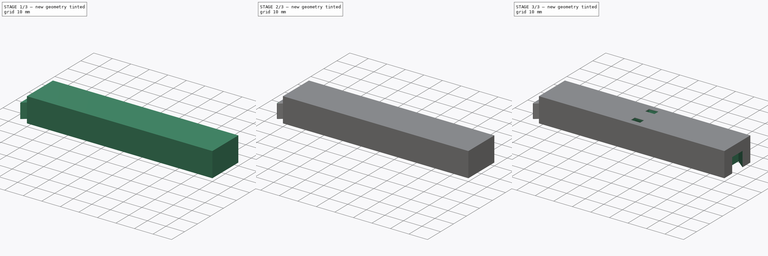
[diagram: build sequence overview — one tinted view per stage of 3, left to right]
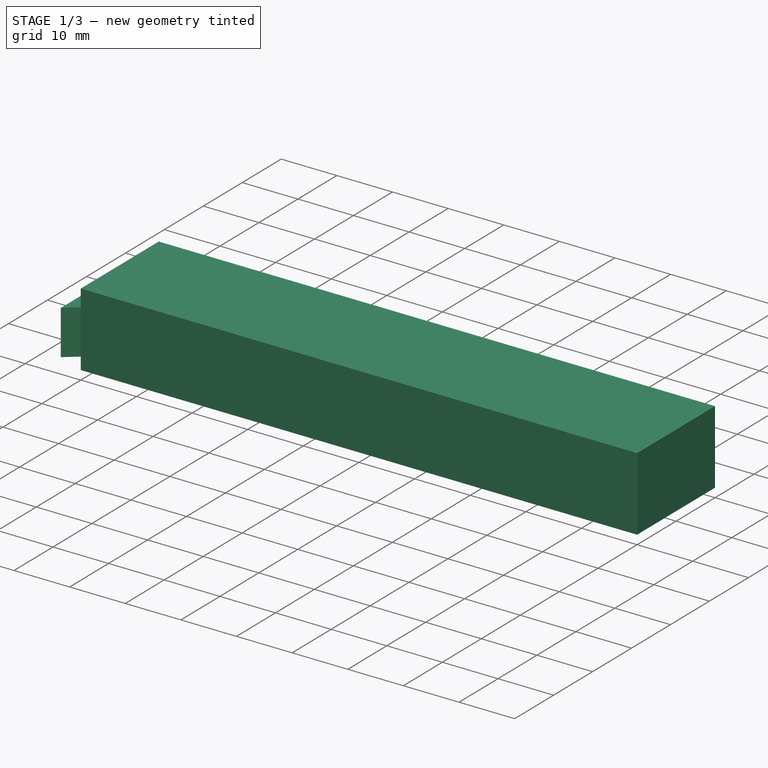
[diagram: stage 1 of 3 — iso view after this stage's code; geometry added in this stage tinted green]
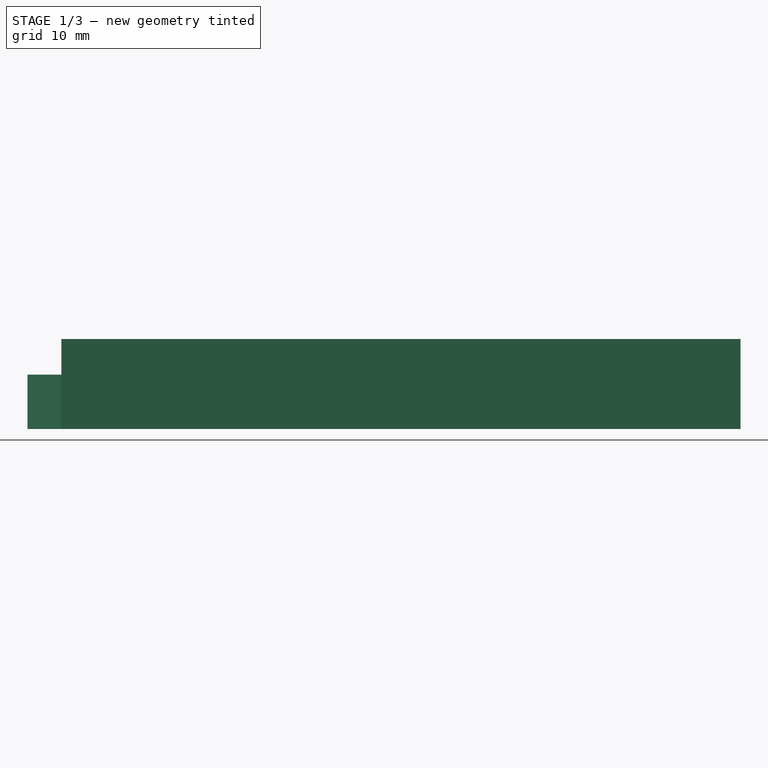
[diagram: stage 1 of 3 — front view after this stage's code; geometry added in this stage tinted green]
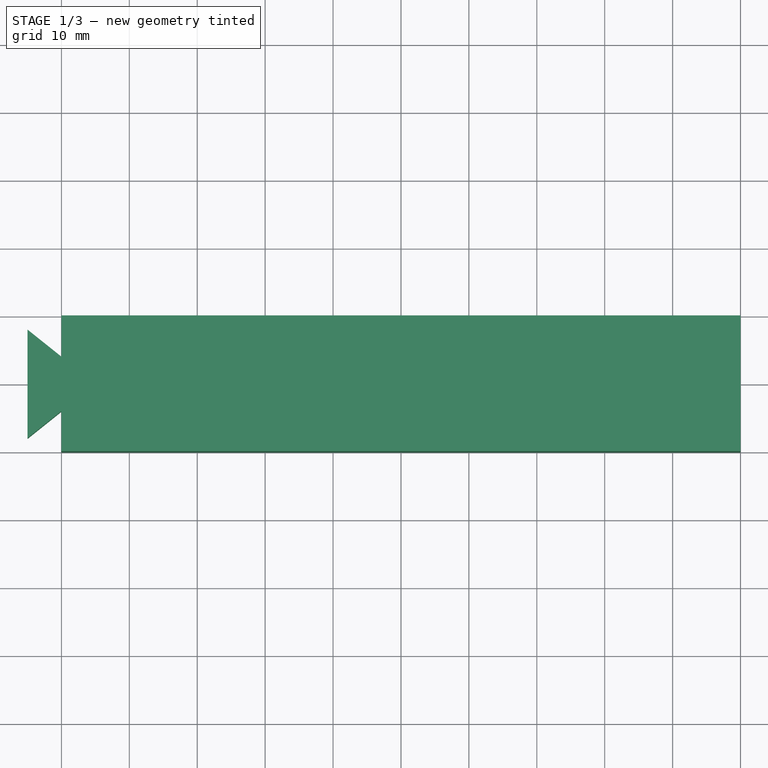
[diagram: stage 1 of 3 — top view after this stage's code; geometry added in this stage tinted green]
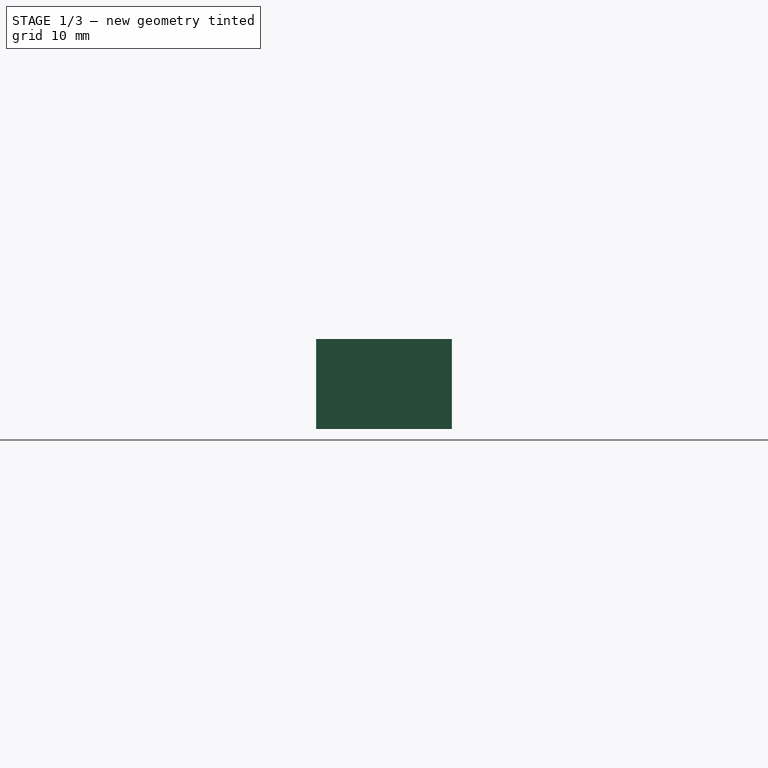
[diagram: stage 1 of 3 — right view after this stage's code; geometry added in this stage tinted green]
FCSTD DOCUMENT  (FreeCAD 1.0R39109 (Git))
Label: Straght
License: All rights reserved
LicenseURL: https://en.wikipedia.org/wiki/All_rights_reserved
objects: Sketcher::SketchObject×4, PartDesign::Pad×2, PartDesign::Chamfer×1, PartDesign::Pocket×1, PartDesign::Groove×1, PartDesign::Body×1
note: 24 computed .brp shape members not serialized (recipe doc carries the construction recipe); baked Part::Feature solids carry a one-line shape summary decoded from their .brp

FEATURE [Sketcher::SketchObject] Sketch
  ArcFitTolerance = 1e-06
  AttachmentSupport = -> [XY_Plane]
  FullyConstrained = true
  MakeInternals = false
  MapMode = 5
  sketch-geometry (4):
    g0: LineSegment StartX=0 StartY=0 StartZ=0 EndX=0 EndY=-20 EndZ=0
    g1: LineSegment StartX=0 StartY=-20 StartZ=0 EndX=100 EndY=-20 EndZ=0
    g2: LineSegment StartX=100 StartY=-20 StartZ=0 EndX=100 EndY=0 EndZ=0
    g3: LineSegment StartX=100 StartY=0 StartZ=0 EndX=0 EndY=0 EndZ=0
  constraints (11):
    c: Coincident(g0,g1)
    c: Coincident(g1,g2)
    c: Coincident(g2,g3)
    c: Coincident(g3,g0)
    c: Vertical(g0)
    c: Vertical(g2)
    c: Horizontal(g1)
    c: Horizontal(g3)
    c: Distance(g0,g2) = 100  'Length'
    c: Distance(g1,g3) = 20
    c: Coincident(g0,g-1)
FEATURE [PartDesign::Pad] Pad
  Direction = (0,0,1)
  Length = 13.25
  Length2 = 10
  Profile = -> Sketch
  ReferenceAxis = -> Sketch [N_Axis]
  Refine = true
  Suppressed = false
  Type = 0
FEATURE [Sketcher::SketchObject] Sketch001
  ArcFitTolerance = 1e-06
  AttachmentSupport = -> [XY_Plane]
  FullyConstrained = true
  MakeInternals = false
  MapMode = 5
  sketch-geometry (5):
    g0: LineSegment StartX=0 StartY=-6 StartZ=0 EndX=-5 EndY=-2 EndZ=0
    g1: LineSegment StartX=-5 StartY=-2 StartZ=0 EndX=-5 EndY=-18 EndZ=0
    g2: LineSegment StartX=-5 StartY=-18 StartZ=0 EndX=0 EndY=-14 EndZ=0
    g3: LineSegment [constr] StartX=-5 StartY=-10 StartZ=0 EndX=0 EndY=-10 EndZ=0
    g4: LineSegment StartX=0 StartY=-6 StartZ=0 EndX=0 EndY=-14 EndZ=0
  constraints (14):
    c: PointOnObject(g0,g-2)
    c: Coincident(g1,g0)
    c: Vertical(g1)
    c: Coincident(g2,g1)
    c: PointOnObject(g2,g-2)
    c: Symmetric(g0,g2,g3)
    c: Symmetric(g0,g1,g3)
    c: Horizontal(g3)
    c: DistanceY(g1,g1) = 16
    c: Coincident(g4,g0)
    c: Coincident(g4,g2)
    c: DistanceY(g4,g4) = 8
    c: Distance(g1,g4) = 5
    c: Distance(g-1,g3) = 10
FEATURE [PartDesign::Pad] Pad001
  BaseFeature = -> Pad
  Direction = (0,0,1)
  Length = 8
  Length2 = 10
  Profile = -> Sketch001
  ReferenceAxis = -> Sketch001 [N_Axis]
  Refine = true
  Suppressed = false
  Type = 0
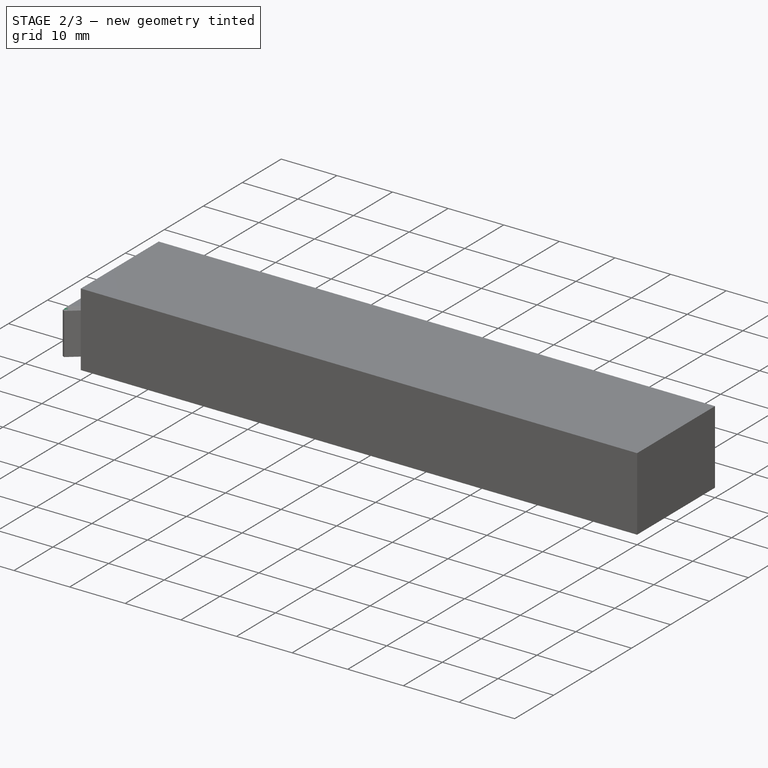
[diagram: stage 2 of 3 — iso view after this stage's code; geometry added in this stage tinted green]
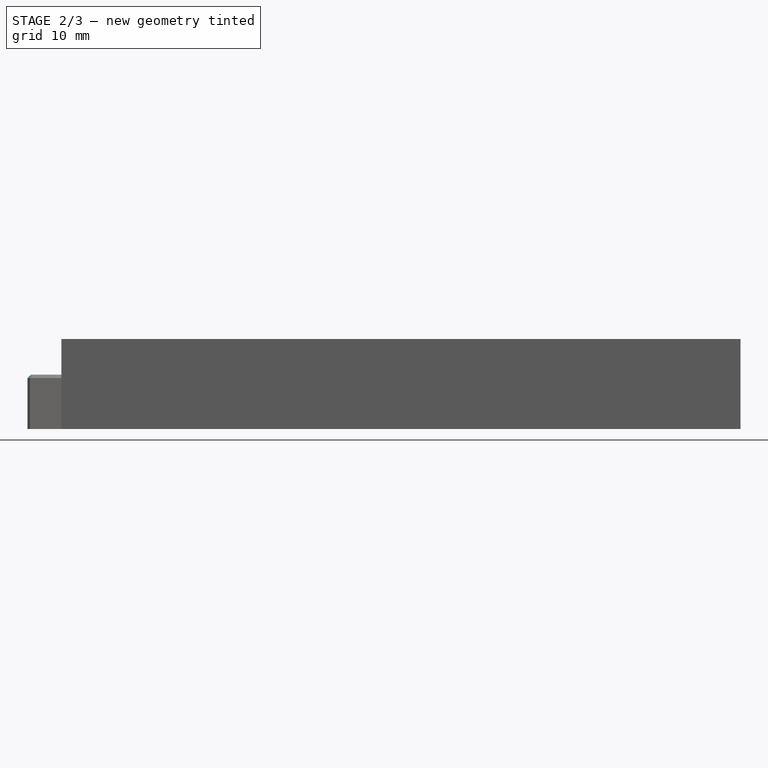
[diagram: stage 2 of 3 — front view after this stage's code; geometry added in this stage tinted green]
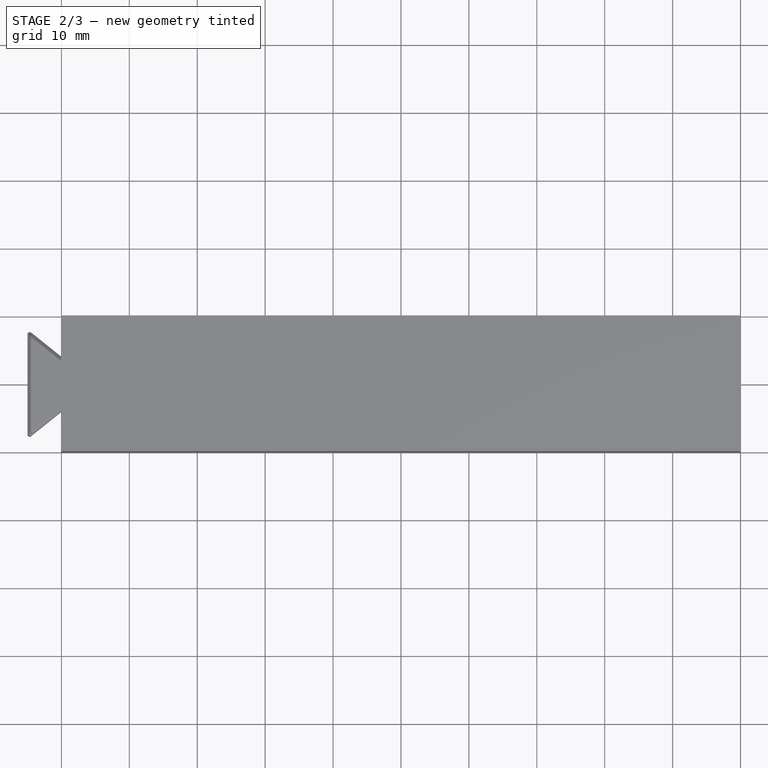
[diagram: stage 2 of 3 — top view after this stage's code; geometry added in this stage tinted green]
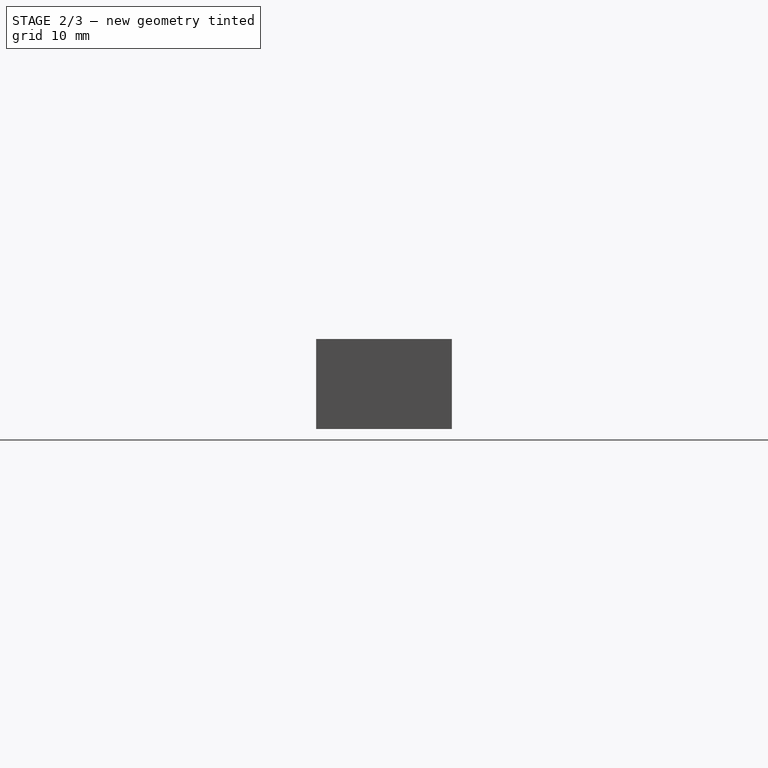
[diagram: stage 2 of 3 — right view after this stage's code; geometry added in this stage tinted green]
FEATURE [PartDesign::Chamfer] Chamfer
  Angle = 45
  Base = -> Pad001 [Edge12,Edge13,Edge11,Edge9,Edge14]
  BaseFeature = -> Pad001
  ChamferType = 0
  FlipDirection = false
  Refine = true
  Size = 0.5
  Size2 = 1
  SupportTransform = false
  Suppressed = false
  UseAllEdges = false
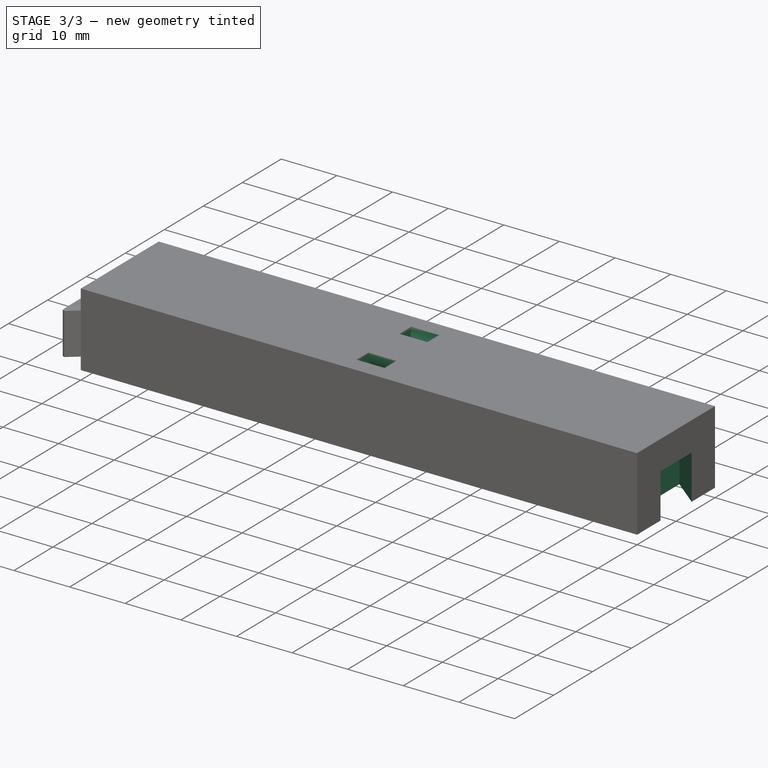
[diagram: stage 3 of 3 — iso view after this stage's code; geometry added in this stage tinted green]
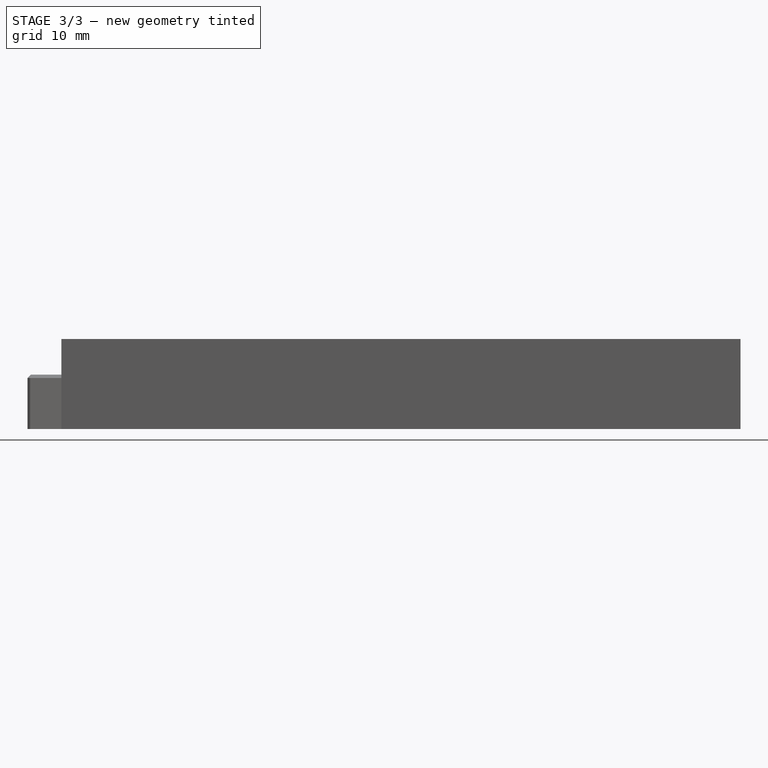
[diagram: stage 3 of 3 — front view after this stage's code; geometry added in this stage tinted green]
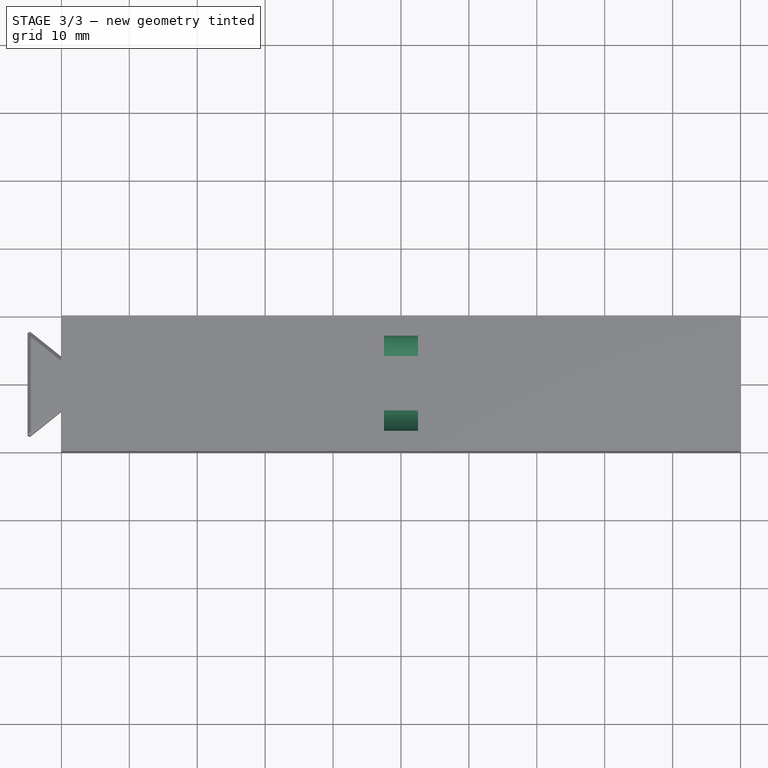
[diagram: stage 3 of 3 — top view after this stage's code; geometry added in this stage tinted green]
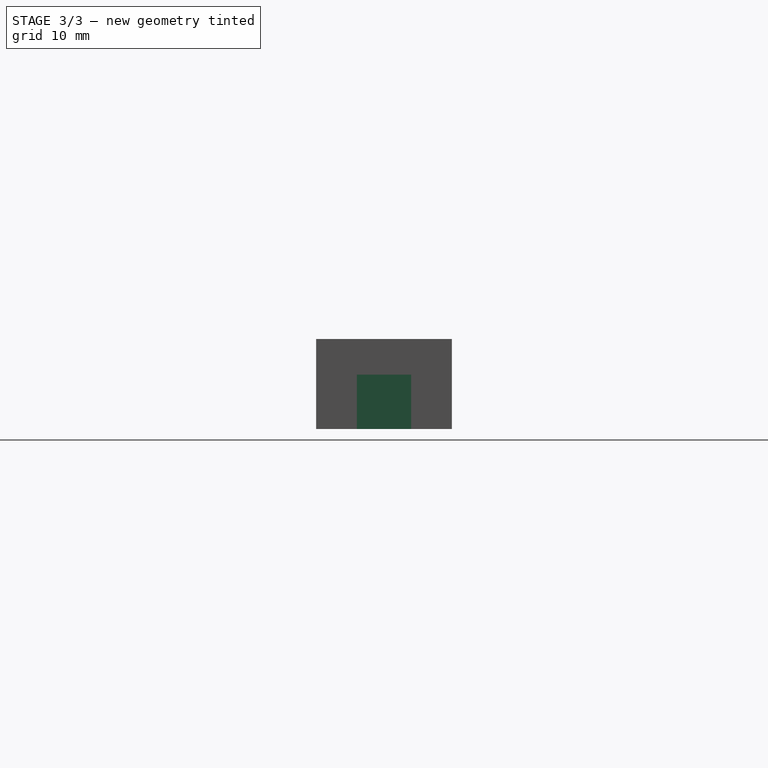
[diagram: stage 3 of 3 — right view after this stage's code; geometry added in this stage tinted green]
FEATURE [Sketcher::SketchObject] Sketch002
  ArcFitTolerance = 1e-06
  AttachmentSupport = -> [Chamfer]
  ExternalGeometry = -> [Chamfer]
  FullyConstrained = true
  MakeInternals = false
  MapMode = 5
  Placement = pos=(0,0,0) rot=(1,0,0;3.14159rad)
  sketch-geometry (5):
    g0: LineSegment StartX=100 StartY=14 StartZ=0 EndX=95 EndY=18 EndZ=0
    g1: LineSegment StartX=95 StartY=18 StartZ=0 EndX=95 EndY=2 EndZ=0
    g2: LineSegment StartX=95 StartY=2 StartZ=0 EndX=100 EndY=6 EndZ=0
    g3: LineSegment StartX=100 StartY=6 StartZ=0 EndX=100 EndY=14 EndZ=0
    g4: LineSegment [constr] StartX=95 StartY=10 StartZ=0 EndX=100 EndY=10 EndZ=0
  constraints (13):
    c: Coincident(g1,g0)
    c: Vertical(g1)
    c: Coincident(g2,g1)
    c: Coincident(g3,g2)
    c: Coincident(g3,g0)
    c: Vertical(g3)
    c: Symmetric(g0,g2,g4)
    c: Symmetric(g0,g1,g4)
    c: Horizontal(g4)
    c: Symmetric(g-3,g-3,g4)
    c: DistanceY(g1,g1) = 16
    c: DistanceY(g3,g3) = 8
    c: Distance(g1,g3) = 5
FEATURE [PartDesign::Pocket] Pocket
  BaseFeature = -> Chamfer
  Direction = (0,0,1)
  Length = 8
  Length2 = 5
  Profile = -> Sketch002
  ReferenceAxis = -> Sketch002 [N_Axis]
  Refine = true
  Suppressed = false
  Type = 0
FEATURE [Sketcher::SketchObject] Sketch003
  ArcFitTolerance = 1e-06
  AttachmentSupport = -> [Pocket]
  ExternalGeometry = -> [Pocket]
  FullyConstrained = true
  MakeInternals = false
  MapMode = 5
  Placement = pos=(0,0,13.25) rot=(0,0,1;0rad)
  sketch-geometry (8):
    g0: LineSegment [constr] StartX=100 StartY=-20 StartZ=0 EndX=50 EndY=-20 EndZ=0
    g1: LineSegment [constr] StartX=0 StartY=-20 StartZ=0 EndX=0 EndY=-10 EndZ=0
    g2: LineSegment [constr] StartX=0 StartY=-10 StartZ=0 EndX=100 EndY=-10 EndZ=0
    g3: LineSegment [constr] StartX=50 StartY=-20 StartZ=0 EndX=50 EndY=-10 EndZ=0
    g4: LineSegment StartX=47.5 StartY=-14 StartZ=0 EndX=47.5 EndY=-17 EndZ=0
    g5: LineSegment StartX=47.5 StartY=-17 StartZ=0 EndX=52.5 EndY=-17 EndZ=0
    g6: LineSegment StartX=52.5 StartY=-17 StartZ=0 EndX=52.5 EndY=-14 EndZ=0
    g7: LineSegment StartX=52.5 StartY=-14 StartZ=0 EndX=47.5 EndY=-14 EndZ=0
  constraints (20):
    c: Coincident(g0,g-3)
    c: Symmetric(g-3,g-3,g0)
    c: Coincident(g1,g-3)
    c: Symmetric(g-1,g1,g1)
    c: Coincident(g2,g1)
    c: Horizontal(g2)
    c: PointOnObject(g2,g-4)
    c: Coincident(g3,g0)
    c: Symmetric(g2,g2,g3)
    c: Coincident(g4,g5)
    c: Coincident(g5,g6)
    c: Coincident(g6,g7)
    c: Coincident(g7,g4)
    c: Vertical(g4)
    c: Vertical(g6)
    c: Horizontal(g5)
    c: Distance(g4,g6) = 5
    c: Distance(g5,g7) = 3
    c: Symmetric(g4,g6,g3)
    c: Distance(g2,g7) = 4
FEATURE [PartDesign::Groove] Groove
  Angle = 360
  Angle2 = 60
  Axis = (100,0,0)
  Base = (0,-10,13.25)
  BaseFeature = -> Pocket
  Profile = -> Sketch003
  ReferenceAxis = -> Sketch003 [Axis2]
  Refine = true
  Suppressed = false
  Type = 1
FEATURE [PartDesign::Body] Body
  AllowCompound = false
  Group = -> [Sketch,Pad,Sketch001,Pad001,Chamfer,Sketch002,Pocket,Sketch003,Groove]
  Origin = -> Origin
  Tip = -> Groove
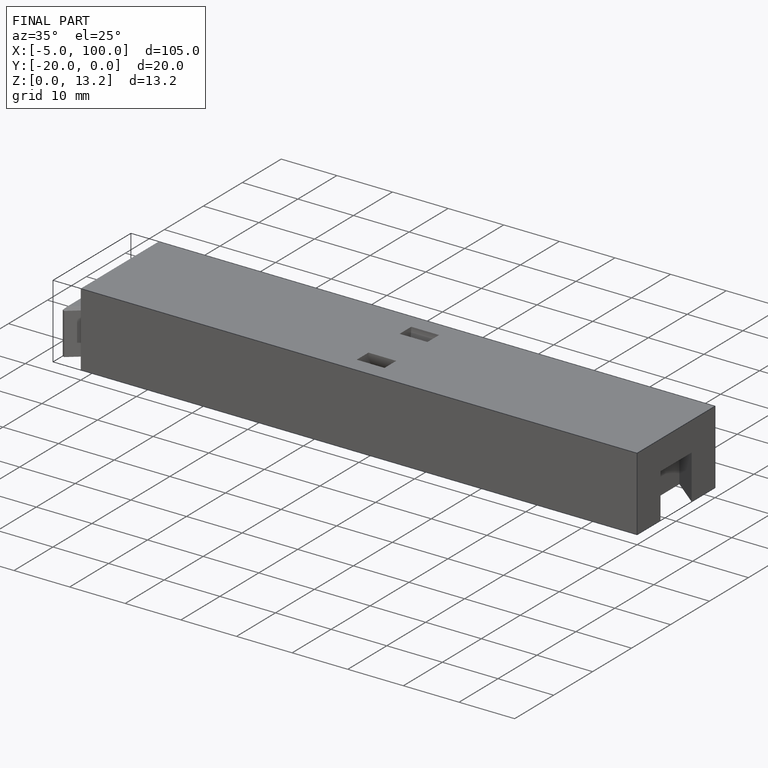
[diagram: finished part — iso view with bounding-box wireframe]
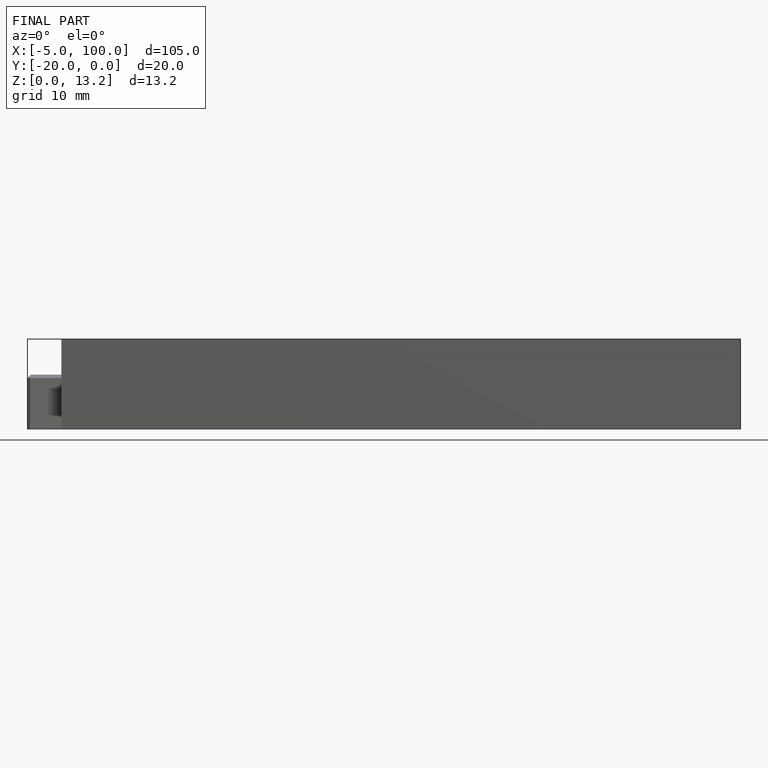
[diagram: finished part — front view with bounding-box wireframe]
